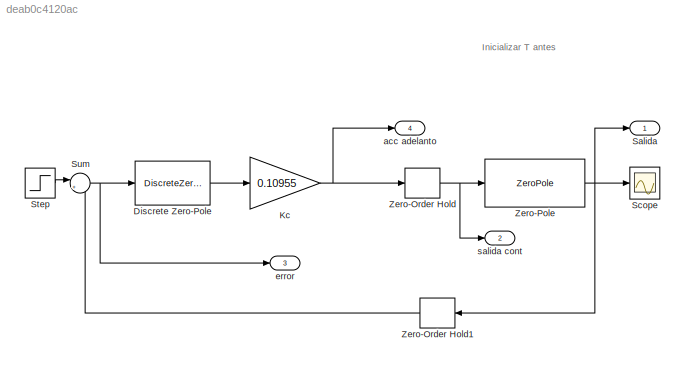
MODEL slx_deab0c4120ac
KIND model
CONFIG AbsTol = auto
CONFIG EnableMultiTasking = on
CONFIG FixedStep = auto
CONFIG MaxStep = 1e-5
CONFIG MinStep = auto
CONFIG RelTol = 1e-3
CONFIG SampleTimeConstraint = Unconstrained
CONFIG SolverName = ode45
CONFIG StartTime = 0.0
CONFIG StopTime = 10
BLOCK [DiscreteZeroPole] Discrete Zero-Pole
  Gain = 1
  Poles = [0.3803]
  SampleTime = -1
  Zeros = [0.8522]
BLOCK [Gain] Kc
  Gain = 0.10955
BLOCK [Outport] Salida
BLOCK [Scope] Scope
  ActiveDisplayYMaximum = 1.4033556348010834
  ActiveDisplayYMinimum = -0.0010443725937694381
  DataLoggingDecimateData = on
  DataLoggingDecimation = 1
  DataLoggingSaveFormat = Structure With Time
  Floating = off
  GraphicalSettings = {"AxesScalingProperties":{"AlignXAxis":"Center","AlignYAxis":"Center","AutoScaleXAxisLimits":false,"AxesScaling":"Manual","AxesScalingNumUpdates":10,"ExpandOnly":true,"ScaleAxesLimitsAtStop":false,"XAxisDataRange":100,"YAxisDataRange":80},"Cursors":{"CursorChannels":["auto","auto"],"Enabled":true,"Horizontal":true,"LinkToWaveform":true,"LockSpacing":false,"ShowMeasurement":true,"ShowPanel":false,"...<+2176ch>
  LayoutDimensionsString = [1 1]
  MultipleDisplayCache = [{"MaxYLimMag":1.5244394516148063,"MaxYLimReal":1.4033556348010834,"MinYLimMag":0,"MinYLimReal":-0.0010443725937694381,"PlotAsMagnitudePhase":false,"ShowGrid":true,"ShowLegend":false,"Title":"%<SignalLabel>","YLabel":""}]
  NumInputPorts = 1
  ScopeFrameLocation = window
  WasSavedAsWebScope = on
  WindowPosition = [67.000000,38.000000,927.000000,1003.000000,]
BLOCK [Step] Step
  SampleTime = .22
  Time = 0
BLOCK [Sum] Sum
  Inputs = |+-
BLOCK [ZeroOrderHold] Zero-Order Hold
  SampleTime = 0.22
BLOCK [ZeroOrderHold] Zero-Order Hold1
  NameLocation = top
  SampleTime = .22
BLOCK [ZeroPole] Zero-Pole
  Gain = [5]
  Poles = [0 0]
  Zeros = [-10]
BLOCK [Outport] acc adelanto
  Port = 4
BLOCK [Outport] error
  Port = 3
BLOCK [Outport] salida cont
  Port = 2
ANNOTATION (root): Inicializar T antes
LINE Discrete Zero-Pole:1 -> Kc:1
NET Kc:1 -> Zero-Order Hold:1, acc adelanto:1
LINE Step:1 -> Sum:1
NET Sum:1 -> Discrete Zero-Pole:1, error:1
LINE Zero-Order Hold1:1 -> Sum:2
NET Zero-Order Hold:1 -> Zero-Pole:1, salida cont:1
NET Zero-Pole:1 -> Salida:1, Scope:1, Zero-Order Hold1:1
note: NET lines group one-source signal fan-out (src -> all destinations, sorted); 1:1 wires keep LINE
